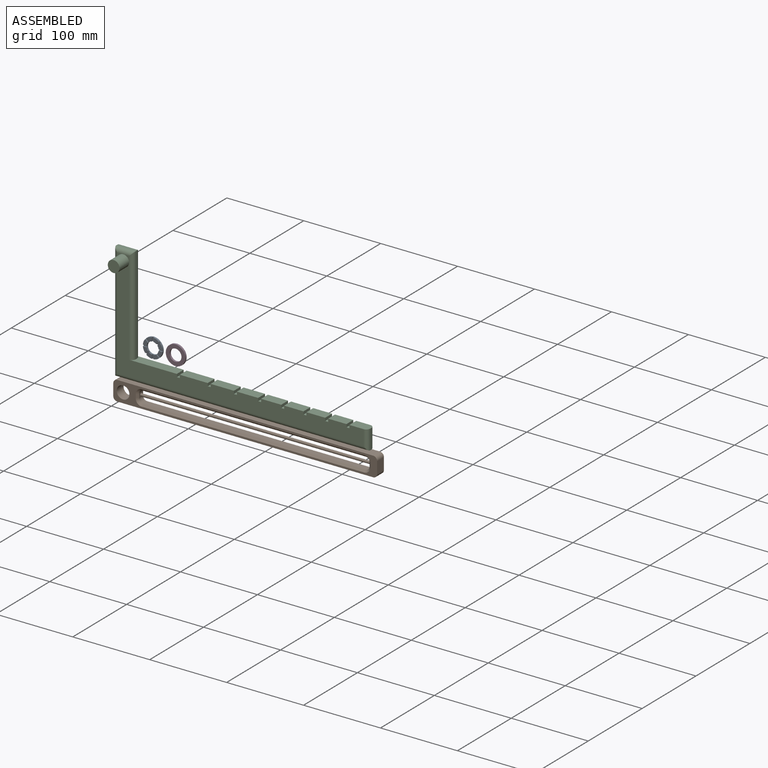
[diagram: assembled view]
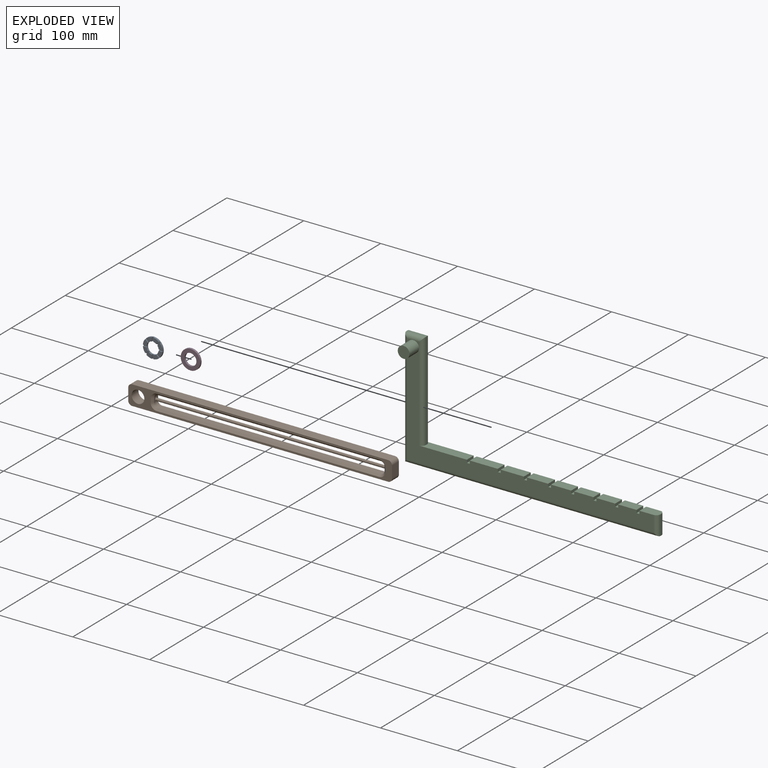
[diagram: exploded view]
GUIDED TOUR — MATED ASSEMBLY (Onshape document 7493769248287f27ccd3d8b9, AutoMate assembly 7493769248287f27ccd3d8b9_c37db1ddf2197a975d140b78_0ff339bc38e24517cc8eb02d_default)

This assembly has 4 components, labeled P0..P3 below (a component is one placed occurrence of a part; the same part can appear more than once), held together by 0 mates. A mate is a constraint between two components; its type names the relative motion it leaves free:
Axis/direction vectors are unit vectors and 'through' points are millimeter coordinates, both in the assembly's world frame.

MATES

ASSEMBLY ORDER
  1. P2 — the base component [order verified]
  2. P0 [order verified]
  3. P3 [order verified]
  4. P1 [order verified]
Order-tag legend:
  [order verified] — this step's position reverses a verified removal order: the component was checked to insert without passing through the ones already placed.

Of the 4 components, 3 carry the full construction recipe — the FeatureScript program that regenerates the part's solid from scratch; the rest are supplied as boundary geometry only.
Each toured component is shown spotlighted twice — in the assembled view, then in the exploded view, where a leader line traces a displaced component back to its assembled socket (saturated green if recipe-attached, orange if geometry-only; every other component desaturated gray) — followed by its recipe or geometry summary and the mates that hold it.
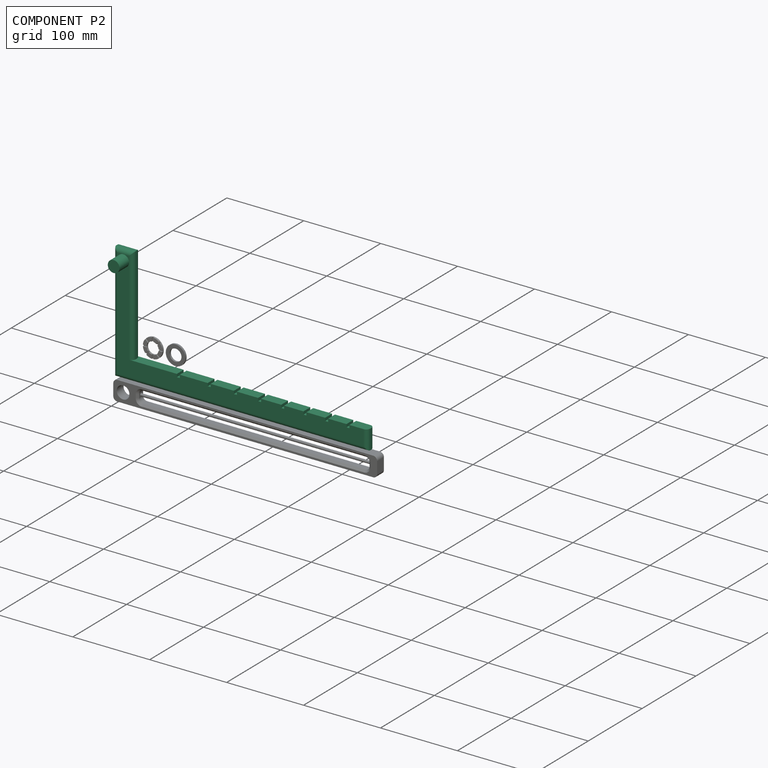
[diagram: component P2 — assembled]
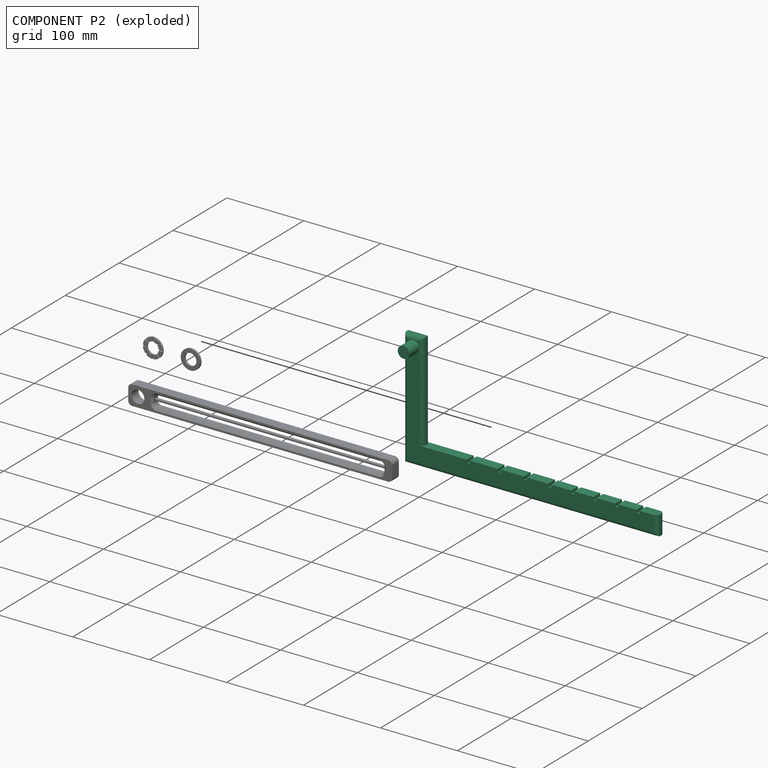
[diagram: component P2 — exploded]
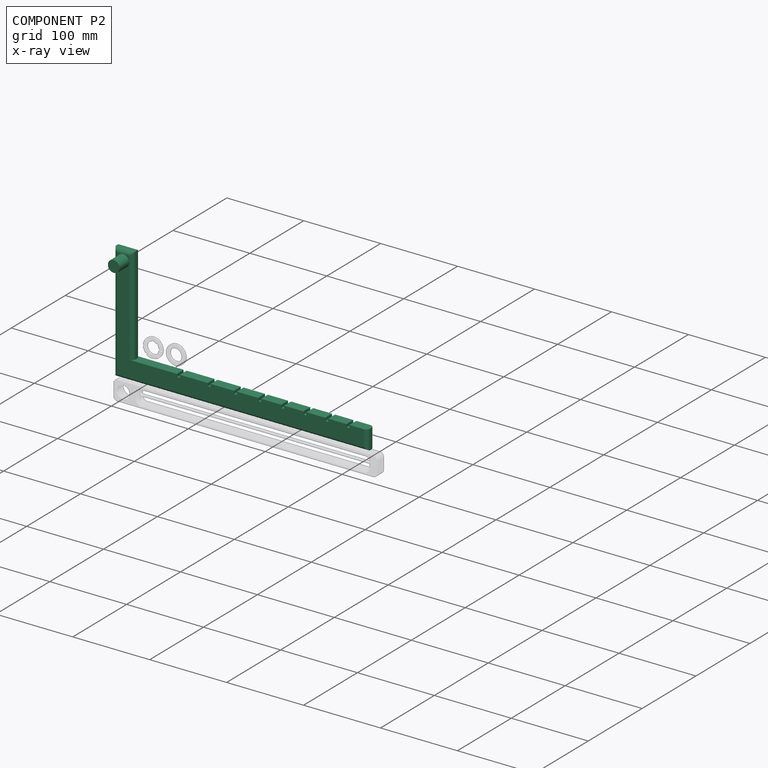
[diagram: component P2 — x-ray view]
COMPONENT P2 — recipe-attached (CADFS 00607360, mesh-verified: the recipe's output STEP matches this component's geometry to below the mesh-comparison resolution (tessellation chordal tolerance ~0.547 mm)).
Held by: no mates (free).
Construction recipe (FeatureScript — the CAD program that rebuilds this solid; sketch coordinates are in the units given by the * unit suffixes, e.g. mm):

FeatureScript 1511;
import(path : "onshape/std/geometry.fs", version : "1511.0");
import(path : "onshape/std/common.fs", version : "1511.0");
const mm = millimeter;
const VERTEX = EntityType.VERTEX;
const EDGE = EntityType.EDGE;
const FACE = EntityType.FACE;
const BODY = EntityType.BODY;
function v(x, y){return vector(x, y);}
function OD(order){return orderDisambiguation(order);}
function OSD(set){return originalSetDisambiguation(set);}
function TD(topology){return topologyDisambiguation(topology);}
function TDD(query){return trueDependencyDisambiguation(query);}
function sQuery(a, b, c) {return sketchEntityQuery(a, b, c);}

annotation { "Feature Type Name" : "Feature", "Feature Type Description" : "" }
export const myFeature = defineFeature(function(context is Context, id is Id, definition is map)
    precondition{}
    {
        {
            var Q0;
            Q0=qCreatedBy(makeId("Front.planeOp"),FACE);
            var sketch = newSketch(context, id + "F0", { "sketchPlane" : qUnion([Q0])});
            skLineSegment(sketch, "E0.bottom", {"start": v(0, 0) * mm, "end": v(330.2, 0) * mm});
            skLineSegment(sketch, "E0.top", {"start": v(0, -25.4) * mm, "end": v(330.2, -25.4) * mm});
            skLineSegment(sketch, "E0.left", {"start": v(0, 0) * mm, "end": v(0, -25.4) * mm});
            skLineSegment(sketch, "E0.right", {"start": v(330.2, 0) * mm, "end": v(330.2, -25.4) * mm});
            skLineSegment(sketch, "E1.bottom", {"start": v(0, 0) * mm, "end": v(25.4, 0) * mm});
            skLineSegment(sketch, "E1.top", {"start": v(0, 127) * mm, "end": v(25.4, 127) * mm});
            skLineSegment(sketch, "E1.left", {"start": v(0, 0) * mm, "end": v(0, 127) * mm});
            skLineSegment(sketch, "E1.right", {"start": v(25.4, 0) * mm, "end": v(25.4, 127) * mm});
            skSolve(sketch);
        }
        {
            var Q0;
            Q0 = qSketchRegion(id + "F0", true);
            extrude(context, id + "F1", {"entities" : qUnion([Q0]), "depth" : 12.7 * mm, "offsetDistance" : 25.4 * mm});
        }
        {
            var Q0;
            Q0=makeQuery(id+"F1.opExtrude","CAP_FACE",FACE,{"disambiguationData":[OSD([sQuery(id+"F0.wireOp",EDGE,"E0.bottom"),sQuery(id+"F0.wireOp",EDGE,"E0.top"),sQuery(id+"F0.wireOp",EDGE,"E0.left"),sQuery(id+"F0.wireOp",EDGE,"E0.right"),sQuery(id+"F0.wireOp",EDGE,"E1.top"),sQuery(id+"F0.wireOp",EDGE,"E1.left"),sQuery(id+"F0.wireOp",EDGE,"E1.right")])],"isStart":false});
            var sketch = newSketch(context, id + "F2", { "sketchPlane" : qUnion([Q0])});
            skPoint(sketch, "E2", {"position": v(12.7, 127) * mm});
            skLineSegment(sketch, "E3", {"start": v(12.7, 127) * mm, "end": v(12.7, 114.3) * mm});
            skCircle(sketch, "E4", {"center": v(12.7, 114.3) * mm, "radius": 7.62 * mm});
            skSolve(sketch);
        }
        {
            var Q0;
            Q0 = qSketchRegion(id + "F2", true);
            extrude(context, id + "F3", {"entities" : qUnion([Q0]), "operationType" : NewBodyOperationType.ADD, "depth" : 17.78 * mm, "offsetDistance" : 25.4 * mm});
        }
        {
            var Q0;
            Q0=makeQuery(id+"F1.opExtrude","CAP_FACE",FACE,{"disambiguationData":[OSD([sQuery(id+"F0.wireOp",EDGE,"E0.bottom"),sQuery(id+"F0.wireOp",EDGE,"E0.top"),sQuery(id+"F0.wireOp",EDGE,"E0.left"),sQuery(id+"F0.wireOp",EDGE,"E0.right"),sQuery(id+"F0.wireOp",EDGE,"E1.top"),sQuery(id+"F0.wireOp",EDGE,"E1.left"),sQuery(id+"F0.wireOp",EDGE,"E1.right")])],"isStart":false});
            var sketch = newSketch(context, id + "F4", { "sketchPlane" : qUnion([Q0])});
            skLineSegment(sketch, "E5", {"start": v(25.4, 0) * mm, "end": v(84.33, 0) * mm});
            skLineSegment(sketch, "E6", {"start": v(25.4, 0) * mm, "end": v(124.46, 0) * mm});
            skLineSegment(sketch, "E7", {"start": v(25.4, 0) * mm, "end": v(158.5, 0) * mm});
            skLineSegment(sketch, "E8", {"start": v(25.4, 0) * mm, "end": v(190, 0) * mm});
            skLineSegment(sketch, "E9", {"start": v(25.4, 0) * mm, "end": v(219.96, 0) * mm});
            skLineSegment(sketch, "E10", {"start": v(25.4, 0) * mm, "end": v(248.92, 0) * mm});
            skLineSegment(sketch, "E11", {"start": v(25.4, 0) * mm, "end": v(277.11, 0) * mm});
            skLineSegment(sketch, "E12", {"start": v(25.4, 0) * mm, "end": v(304.8, 0) * mm});
            skLineSegment(sketch, "E13.bottom", {"start": v(86.23, -3.8) * mm, "end": v(82.42, -3.8) * mm});
            skLineSegment(sketch, "E13.top", {"start": v(86.23, 3.81) * mm, "end": v(82.42, 3.81) * mm});
            skLineSegment(sketch, "E13.left", {"start": v(86.23, -3.8) * mm, "end": v(86.23, 3.81) * mm});
            skLineSegment(sketch, "E13.right", {"start": v(82.42, -3.8) * mm, "end": v(82.42, 3.81) * mm});
            skPoint(sketch, "E13.middle", {"position": v(84.33, 0) * mm});
            skLineSegment(sketch, "E14.bottom", {"start": v(126.37, -3.8) * mm, "end": v(122.56, -3.8) * mm});
            skLineSegment(sketch, "E14.top", {"start": v(126.37, 3.81) * mm, "end": v(122.56, 3.81) * mm});
            skLineSegment(sketch, "E14.left", {"start": v(126.37, -3.8) * mm, "end": v(126.37, 3.81) * mm});
            skLineSegment(sketch, "E14.right", {"start": v(122.56, -3.8) * mm, "end": v(122.56, 3.81) * mm});
            skPoint(sketch, "E14.middle", {"position": v(124.46, 0) * mm});
            skLineSegment(sketch, "E15.bottom", {"start": v(160.4, -3.8) * mm, "end": v(156.6, -3.8) * mm});
            skLineSegment(sketch, "E15.top", {"start": v(160.4, 3.81) * mm, "end": v(156.6, 3.81) * mm});
            skLineSegment(sketch, "E15.left", {"start": v(160.4, -3.8) * mm, "end": v(160.4, 3.81) * mm});
            skLineSegment(sketch, "E15.right", {"start": v(156.6, -3.8) * mm, "end": v(156.6, 3.81) * mm});
            skPoint(sketch, "E15.middle", {"position": v(158.5, 0) * mm});
            skLineSegment(sketch, "E16.bottom", {"start": v(191.9, -3.8) * mm, "end": v(188.09, -3.8) * mm});
            skLineSegment(sketch, "E16.top", {"start": v(191.9, 3.81) * mm, "end": v(188.09, 3.81) * mm});
            skLineSegment(sketch, "E16.left", {"start": v(191.9, -3.8) * mm, "end": v(191.9, 3.81) * mm});
            skLineSegment(sketch, "E16.right", {"start": v(188.09, -3.8) * mm, "end": v(188.09, 3.81) * mm});
            skPoint(sketch, "E16.middle", {"position": v(190, 0) * mm});
            skLineSegment(sketch, "E17.bottom", {"start": v(221.87, -3.8) * mm, "end": v(218.06, -3.8) * mm});
            skLineSegment(sketch, "E17.top", {"start": v(221.87, 3.81) * mm, "end": v(218.06, 3.81) * mm});
            skLineSegment(sketch, "E17.left", {"start": v(221.87, -3.8) * mm, "end": v(221.87, 3.81) * mm});
            skLineSegment(sketch, "E17.right", {"start": v(218.06, -3.8) * mm, "end": v(218.06, 3.81) * mm});
            skPoint(sketch, "E17.middle", {"position": v(219.96, 0) * mm});
            skLineSegment(sketch, "E18.bottom", {"start": v(250.83, -3.8) * mm, "end": v(247.02, -3.8) * mm});
            skLineSegment(sketch, "E18.top", {"start": v(250.83, 3.81) * mm, "end": v(247.02, 3.81) * mm});
            skLineSegment(sketch, "E18.left", {"start": v(250.83, -3.8) * mm, "end": v(250.83, 3.81) * mm});
            skLineSegment(sketch, "E18.right", {"start": v(247.02, -3.8) * mm, "end": v(247.02, 3.81) * mm});
            skPoint(sketch, "E18.middle", {"position": v(248.92, 0) * mm});
            skLineSegment(sketch, "E19.bottom", {"start": v(279.02, -3.8) * mm, "end": v(275.2, -3.8) * mm});
            skLineSegment(sketch, "E19.top", {"start": v(279.02, 3.81) * mm, "end": v(275.2, 3.81) * mm});
            skLineSegment(sketch, "E19.left", {"start": v(279.02, -3.8) * mm, "end": v(279.02, 3.81) * mm});
            skLineSegment(sketch, "E19.right", {"start": v(275.2, -3.8) * mm, "end": v(275.2, 3.81) * mm});
            skPoint(sketch, "E19.middle", {"position": v(277.11, 0) * mm});
            skLineSegment(sketch, "E20.bottom", {"start": v(306.7, -3.8) * mm, "end": v(302.9, -3.8) * mm});
            skLineSegment(sketch, "E20.top", {"start": v(306.7, 3.81) * mm, "end": v(302.9, 3.81) * mm});
            skLineSegment(sketch, "E20.left", {"start": v(306.7, -3.8) * mm, "end": v(306.7, 3.81) * mm});
            skLineSegment(sketch, "E20.right", {"start": v(302.9, -3.8) * mm, "end": v(302.9, 3.81) * mm});
            skPoint(sketch, "E20.middle", {"position": v(304.8, 0) * mm});
            skSolve(sketch);
        }
        {
            var Q0;
            Q0 = qSketchRegion(id + "F4", true);
            extrude(context, id + "F5", {"entities" : qUnion([Q0]), "operationType" : NewBodyOperationType.REMOVE, "oppositeDirection" : true, "depth" : 25.4 * mm, "offsetDistance" : 25.4 * mm});
        }
        {
            var Q0;
            Q0=makeQuery(id+"F1.opExtrude","CAP_EDGE",EDGE,{"disambiguationData":[OSD([sQuery(id+"F0.wireOp",EDGE,"E0.top")])],"isStart":false});
            var Q1;
            Q1=makeQuery(id+"F1.opExtrude","CAP_EDGE",EDGE,{"disambiguationData":[OSD([sQuery(id+"F0.wireOp",EDGE,"E0.top")])],"isStart":true});
            var Q2;
            Q2=makeQuery(id+"F1.opExtrude","CAP_EDGE",EDGE,{"disambiguationData":[OSD([sQuery(id+"F0.wireOp",EDGE,"E0.left"),sQuery(id+"F0.wireOp",EDGE,"E1.left")])],"isStart":true});
            var Q3;
            Q3=makeQuery(id+"F1.opExtrude","CAP_EDGE",EDGE,{"disambiguationData":[OSD([sQuery(id+"F0.wireOp",EDGE,"E0.left"),sQuery(id+"F0.wireOp",EDGE,"E1.left")])],"isStart":false});
            var Q4;
            Q4=makeQuery(id+"F1.opExtrude","CAP_EDGE",EDGE,{"disambiguationData":[OSD([sQuery(id+"F0.wireOp",EDGE,"E1.top")])],"isStart":true});
            var Q5;
            Q5=makeQuery(id+"F1.opExtrude","CAP_EDGE",EDGE,{"disambiguationData":[OSD([sQuery(id+"F0.wireOp",EDGE,"E1.top")])],"isStart":false});
            var Q6;
            Q6=makeQuery(id+"F1.opExtrude","CAP_EDGE",EDGE,{"disambiguationData":[OSD([sQuery(id+"F0.wireOp",EDGE,"E1.right")])],"isStart":true});
            var Q7;
            Q7=makeQuery(id+"F1.opExtrude","CAP_EDGE",EDGE,{"disambiguationData":[OSD([sQuery(id+"F0.wireOp",EDGE,"E1.right")])],"isStart":false});
            var Q8;
            Q8=makeQuery(id+"F1.opExtrude","CAP_EDGE",EDGE,{"disambiguationData":[OSD([sQuery(id+"F0.wireOp",EDGE,"E0.right")])],"isStart":true});
            var Q9;
            Q9=makeQuery(id+"F1.opExtrude","CAP_EDGE",EDGE,{"disambiguationData":[OSD([sQuery(id+"F0.wireOp",EDGE,"E0.right")])],"isStart":false});
            fillet(context, id + "F6", {"entities" : qUnion([Q0, Q1, Q2, Q3, Q4, Q5, Q6, Q7, Q8, Q9]), "radius" : 5.08 * mm, "tangentPropagation" : true, "allowEdgeOverflow" : false});
        }
    });
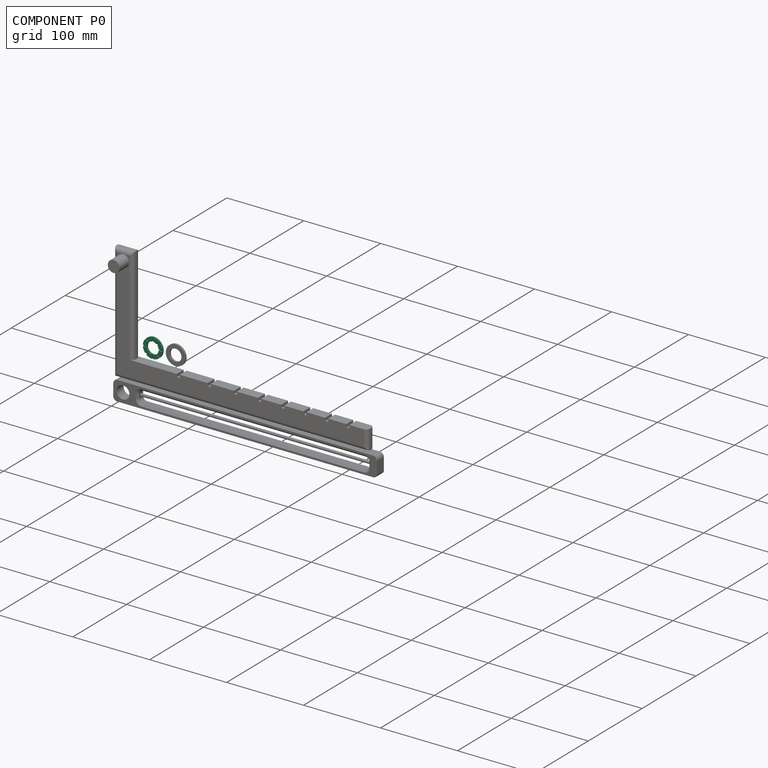
[diagram: component P0 — assembled]
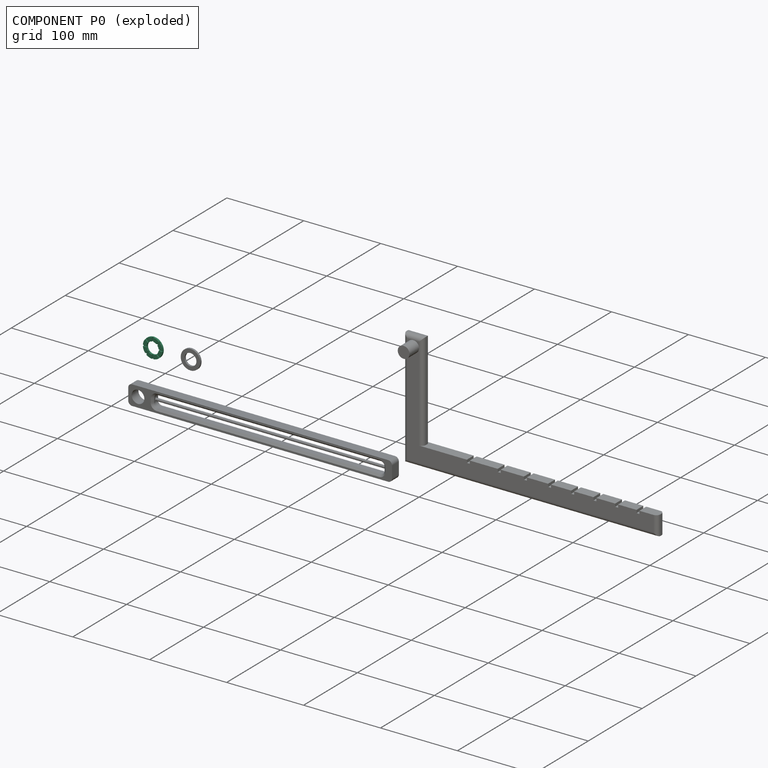
[diagram: component P0 — exploded]
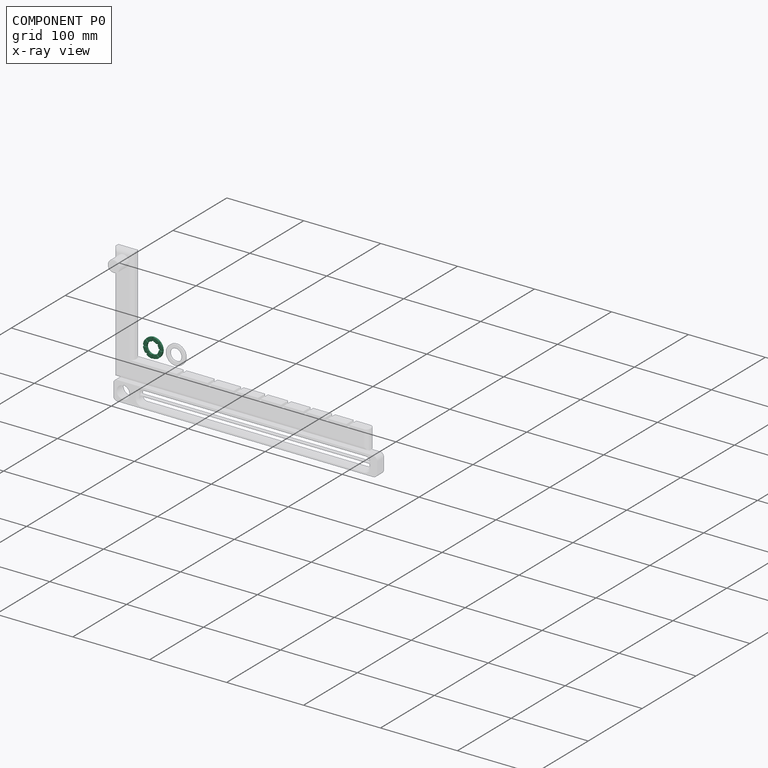
[diagram: component P0 — x-ray view]
COMPONENT P0 — recipe-attached (CADFS 00607361, mesh-verified: the recipe's output STEP matches this component's geometry to below the mesh-comparison resolution (tessellation chordal tolerance ~0.054 mm)).
Held by: no mates (free).
Construction recipe (FeatureScript — the CAD program that rebuilds this solid; sketch coordinates are in the units given by the * unit suffixes, e.g. mm):

FeatureScript 1511;
import(path : "onshape/std/geometry.fs", version : "1511.0");
import(path : "onshape/std/common.fs", version : "1511.0");
const mm = millimeter;
const VERTEX = EntityType.VERTEX;
const EDGE = EntityType.EDGE;
const FACE = EntityType.FACE;
const BODY = EntityType.BODY;
function v(x, y){return vector(x, y);}
function OD(order){return orderDisambiguation(order);}
function OSD(set){return originalSetDisambiguation(set);}
function TD(topology){return topologyDisambiguation(topology);}
function TDD(query){return trueDependencyDisambiguation(query);}
function sQuery(a, b, c) {return sketchEntityQuery(a, b, c);}

annotation { "Feature Type Name" : "Feature", "Feature Type Description" : "" }
export const myFeature = defineFeature(function(context is Context, id is Id, definition is map)
    precondition{}
    {
        {
            var Q0;
            Q0=qCreatedBy(makeId("Top.planeOp"),FACE);
            var sketch = newSketch(context, id + "F0", { "sketchPlane" : qUnion([Q0])});
            skCircle(sketch, "E0", {"center": v(0, 0) * mm, "radius": 7.75 * mm});
            skCircle(sketch, "E1", {"center": v(0, 0) * mm, "radius": 12.7 * mm});
            skSolve(sketch);
        }
        {
            var Q0;
            Q0=makeQuery(id+"F0.imprint","IMPRINT",FACE,{"disambiguationData":[TD([[makeQuery(id+"F0.imprint","IMPRINT",EDGE,{"derivedFrom":sQuery(id+"F0.wireOp",EDGE,"E0")}),-1.0]])]});
            extrude(context, id + "F1", {"entities" : qUnion([Q0]), "depth" : 2.54 * mm, "offsetDistance" : 25.4 * mm});
        }
        {
            var Q0;
            Q0=makeQuery(id+"F1.opExtrude","CAP_FACE",FACE,{"disambiguationData":[OSD([sQuery(id+"F0.wireOp",EDGE,"E0"),sQuery(id+"F0.wireOp",EDGE,"E1")])],"isStart":false});
            var sketch = newSketch(context, id + "F2", { "sketchPlane" : qUnion([Q0])});
            skPoint(sketch, "E2", {"position": v(0, 0) * mm});
            skLineSegment(sketch, "E3", {"start": v(0, 0) * mm, "end": v(6.35, 6.35) * mm});
            skLineSegment(sketch, "E4", {"start": v(0, 0) * mm, "end": v(-6.35, 6.35) * mm});
            skLineSegment(sketch, "E5", {"start": v(0, 0) * mm, "end": v(6.35, -6.35) * mm});
            skLineSegment(sketch, "E6", {"start": v(0, 0) * mm, "end": v(-6.35, -6.35) * mm});
            skLineSegment(sketch, "E7", {"start": v(0, 0) * mm, "end": v(-9.7, -9.7) * mm});
            skLineSegment(sketch, "E8", {"start": v(0, 0) * mm, "end": v(9.7, -9.7) * mm});
            skLineSegment(sketch, "E9", {"start": v(0, 0) * mm, "end": v(-9.7, 9.7) * mm});
            skLineSegment(sketch, "E10", {"start": v(0, 0) * mm, "end": v(9.7, 9.7) * mm});
            skLineSegment(sketch, "E11", {"start": v(0, 0) * mm, "end": v(1.27, 0) * mm});
            skLineSegment(sketch, "E12", {"start": v(0, 0) * mm, "end": v(0, 1.27) * mm});
            skLineSegment(sketch, "E13", {"start": v(9.7, 9.7) * mm, "end": v(9.7, 8.43) * mm});
            skLineSegment(sketch, "E14", {"start": v(9.7, 9.7) * mm, "end": v(8.43, 9.7) * mm});
            skLineSegment(sketch, "E15", {"start": v(0, 1.27) * mm, "end": v(8.43, 9.7) * mm});
            skLineSegment(sketch, "E16", {"start": v(1.27, 0) * mm, "end": v(9.7, 8.43) * mm});
            skLineSegment(sketch, "E17", {"start": v(0, 0) * mm, "end": v(0, -1.27) * mm});
            skLineSegment(sketch, "E18", {"start": v(9.7, -9.7) * mm, "end": v(9.7, -8.43) * mm});
            skLineSegment(sketch, "E19", {"start": v(9.7, -9.7) * mm, "end": v(8.43, -9.7) * mm});
            skLineSegment(sketch, "E20", {"start": v(1.27, 0) * mm, "end": v(9.7, -8.43) * mm});
            skLineSegment(sketch, "E21", {"start": v(0, -1.27) * mm, "end": v(8.43, -9.7) * mm});
            skLineSegment(sketch, "E22", {"start": v(0, 0) * mm, "end": v(-1.27, 0) * mm});
            skLineSegment(sketch, "E23", {"start": v(-9.7, -9.7) * mm, "end": v(-8.43, -9.7) * mm});
            skLineSegment(sketch, "E24", {"start": v(-9.7, -9.7) * mm, "end": v(-9.7, -8.43) * mm});
            skLineSegment(sketch, "E25", {"start": v(-8.43, -9.7) * mm, "end": v(0, -1.27) * mm});
            skLineSegment(sketch, "E26", {"start": v(-9.7, -8.43) * mm, "end": v(-1.27, 0) * mm});
            skLineSegment(sketch, "E27", {"start": v(-9.7, 9.7) * mm, "end": v(-9.7, 8.43) * mm});
            skLineSegment(sketch, "E28", {"start": v(-9.7, 9.7) * mm, "end": v(-8.43, 9.7) * mm});
            skLineSegment(sketch, "E29", {"start": v(-8.43, 9.7) * mm, "end": v(0, 1.27) * mm});
            skLineSegment(sketch, "E30", {"start": v(-1.27, 0) * mm, "end": v(-9.7, 8.43) * mm});
            skSolve(sketch);
        }
        {
            var Q0;
            Q0 = qSketchRegion(id + "F2", true);
            extrude(context, id + "F3", {"entities" : qUnion([Q0]), "operationType" : NewBodyOperationType.REMOVE, "oppositeDirection" : true, "depth" : 1.27 * mm, "offsetDistance" : 25.4 * mm});
        }
        {
            var Q0;
            {var subQ0=sQuery(id+"F0.wireOp",EDGE,"E0");var subQ1=sQuery(id+"F0.wireOp",EDGE,"E1");Q0=makeQuery(id+"F3.boolean.opBoolean","SPLIT",FACE,{"disambiguationData":[TD([makeQuery(id+"F3.opExtrude","SWEPT_FACE",FACE,{"disambiguationData":[OSD([sQuery(id+"F2.wireOp",EDGE,"E15")])]})])],"derivedFrom":makeQuery(id+"F1.opExtrude","CAP_FACE",FACE,{"disambiguationData":[OSD([subQ0,subQ1])],"isStart":false})});}
            var sketch = newSketch(context, id + "F4", { "sketchPlane" : qUnion([Q0])});
            skLineSegment(sketch, "E31.bottom", {"start": v(0.95, -12.7) * mm, "end": v(-0.95, -12.7) * mm});
            skLineSegment(sketch, "E31.top", {"start": v(0.95, 12.7) * mm, "end": v(-0.95, 12.7) * mm});
            skLineSegment(sketch, "E31.left", {"start": v(0.95, -12.7) * mm, "end": v(0.95, 12.7) * mm});
            skLineSegment(sketch, "E31.right", {"start": v(-0.95, -12.7) * mm, "end": v(-0.95, 12.7) * mm});
            skPoint(sketch, "E31.middle", {"position": v(0, 0) * mm});
            skLineSegment(sketch, "E32.bottom", {"start": v(12.7, -0.95) * mm, "end": v(-12.7, -0.95) * mm});
            skLineSegment(sketch, "E32.top", {"start": v(12.7, 0.95) * mm, "end": v(-12.7, 0.95) * mm});
            skLineSegment(sketch, "E32.left", {"start": v(12.7, -0.95) * mm, "end": v(12.7, 0.95) * mm});
            skLineSegment(sketch, "E32.right", {"start": v(-12.7, -0.95) * mm, "end": v(-12.7, 0.95) * mm});
            skSolve(sketch);
        }
        {
            var Q0;
            Q0 = qSketchRegion(id + "F4", true);
            extrude(context, id + "F5", {"entities" : qUnion([Q0]), "operationType" : NewBodyOperationType.REMOVE, "oppositeDirection" : true, "depth" : 1.27 * mm, "offsetDistance" : 25.4 * mm});
        }
    });
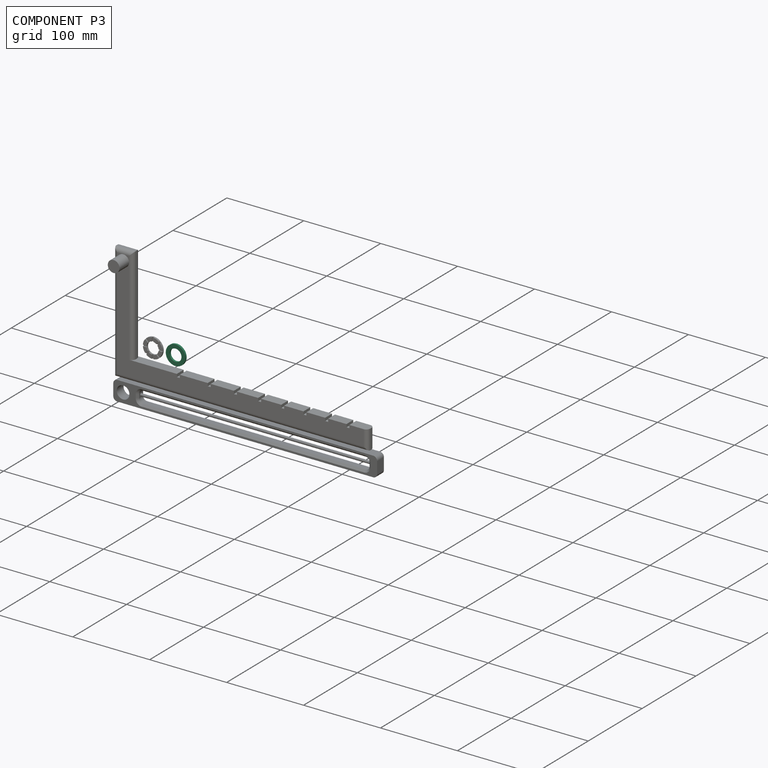
[diagram: component P3 — assembled]
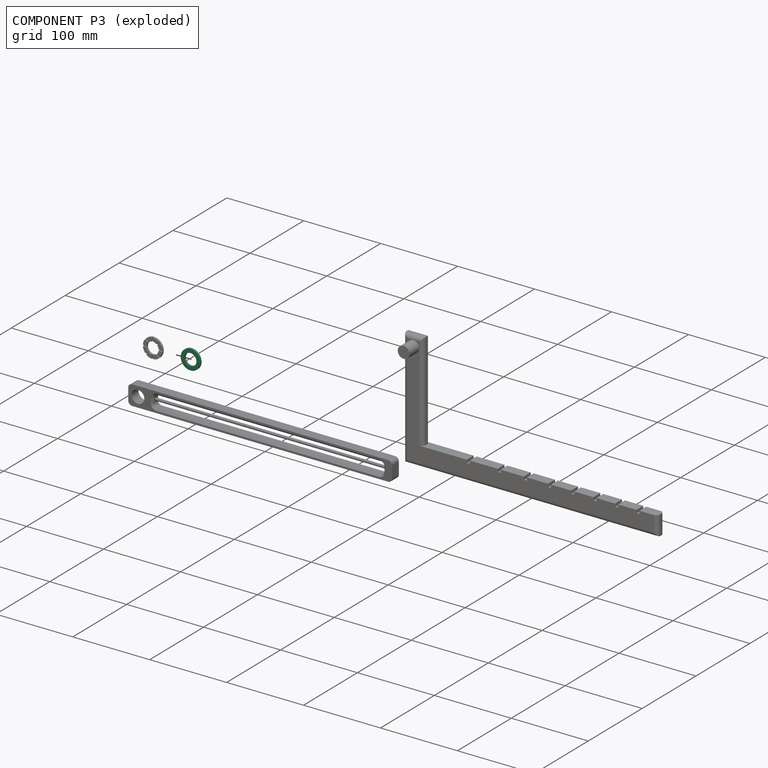
[diagram: component P3 — exploded]
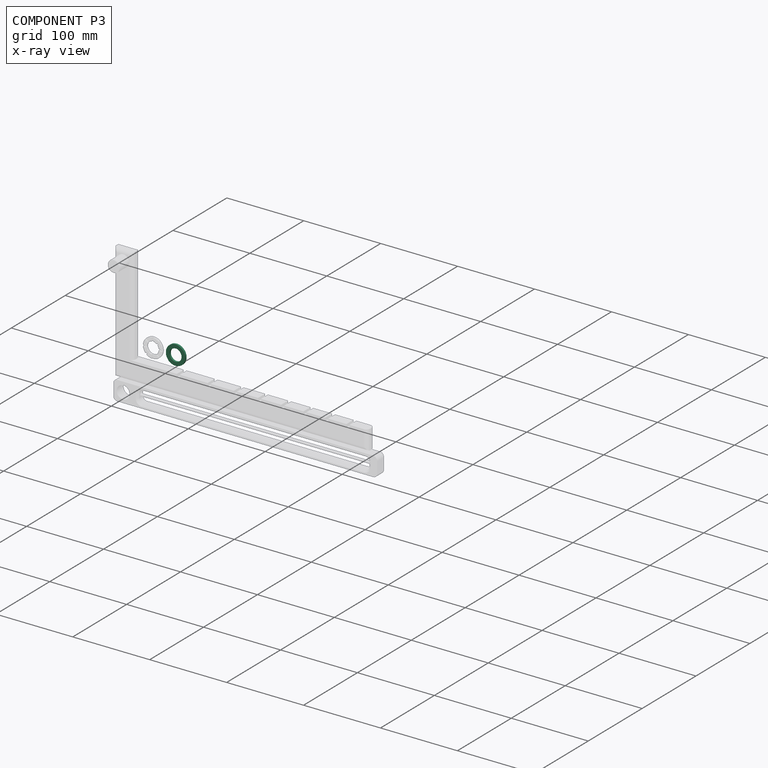
[diagram: component P3 — x-ray view]
COMPONENT P3 — recipe-attached (CADFS 00607362, mesh-verified: the recipe's output STEP matches this component's geometry to below the mesh-comparison resolution (tessellation chordal tolerance ~0.054 mm)).
Held by: no mates (free).
Construction recipe (FeatureScript — the CAD program that rebuilds this solid; sketch coordinates are in the units given by the * unit suffixes, e.g. mm):

FeatureScript 1511;
import(path : "onshape/std/geometry.fs", version : "1511.0");
import(path : "onshape/std/common.fs", version : "1511.0");
const mm = millimeter;
const VERTEX = EntityType.VERTEX;
const EDGE = EntityType.EDGE;
const FACE = EntityType.FACE;
const BODY = EntityType.BODY;
function v(x, y){return vector(x, y);}
function OD(order){return orderDisambiguation(order);}
function OSD(set){return originalSetDisambiguation(set);}
function TD(topology){return topologyDisambiguation(topology);}
function TDD(query){return trueDependencyDisambiguation(query);}
function sQuery(a, b, c) {return sketchEntityQuery(a, b, c);}

annotation { "Feature Type Name" : "Feature", "Feature Type Description" : "" }
export const myFeature = defineFeature(function(context is Context, id is Id, definition is map)
    precondition{}
    {
        {
            var Q0;
            Q0=qCreatedBy(makeId("Top.planeOp"),FACE);
            var sketch = newSketch(context, id + "F0", { "sketchPlane" : qUnion([Q0])});
            skCircle(sketch, "E0", {"center": v(0, 0) * mm, "radius": 7.75 * mm});
            skCircle(sketch, "E1", {"center": v(0, 0) * mm, "radius": 12.7 * mm});
            skSolve(sketch);
        }
        {
            var Q0;
            Q0=makeQuery(id+"F0.imprint","IMPRINT",FACE,{"disambiguationData":[TD([[makeQuery(id+"F0.imprint","IMPRINT",EDGE,{"derivedFrom":sQuery(id+"F0.wireOp",EDGE,"E0")}),-1.0]])]});
            extrude(context, id + "F1", {"entities" : qUnion([Q0]), "depth" : 2.54 * mm, "offsetDistance" : 25.4 * mm});
        }
    });
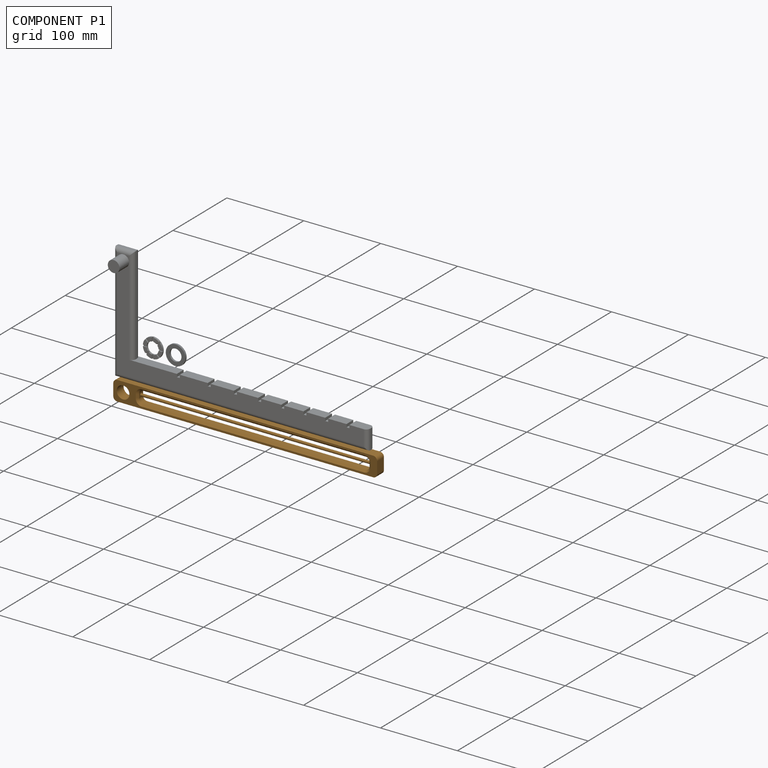
[diagram: component P1 — assembled]
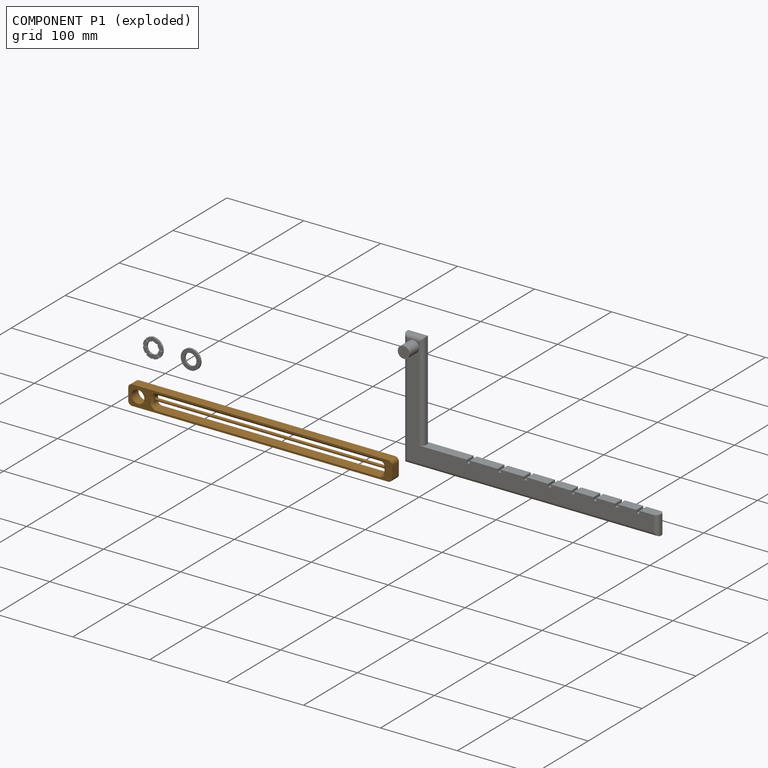
[diagram: component P1 — exploded]
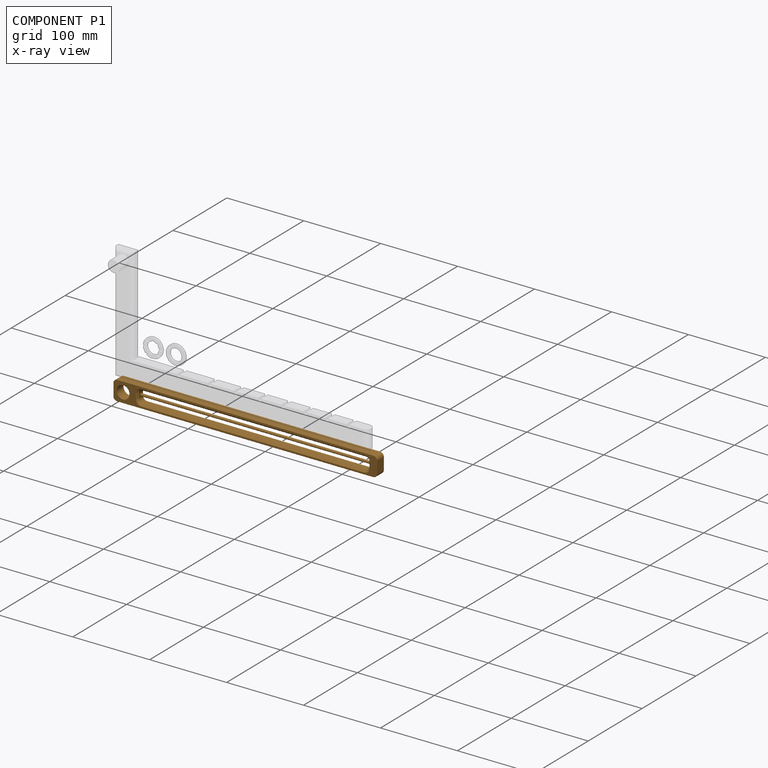
[diagram: component P1 — x-ray view]
COMPONENT P1 — geometry summary (no construction recipe available for this part):
  bounding box: 342.9 x 25.4 x 12.7 mm
  B-rep topology: 1 solid, 36 faces, 174 edges
  volume: 48818 mm^3 (44% of its bounding box)
  symmetry: 2-fold rotationally symmetric about the x axis; mirror-symmetric across its y mid-plane, z mid-plane
Held by: no mates (free).
PROVENANCE & LICENSES
Assembly (occurrences, transforms, mates, per-part STEP geometry): AutoMate dataset, Zenodo record 7776208, CC0.
Construction recipes: CADFS (HuggingFace VladPyatov/CADFS, CC-BY-4.0, layered over the ABC dataset), FeatureScript reconstruction programs keyed by ABC model id.
Join: ABC meta listings map ABC model id -> Onshape documentId; within a shared document, parts are matched by geometric signature (bounding-box dims + volume at 0.1% relative tolerance, exact B-rep face/solid counts).
Verification: 3 of this assembly's 4 components carry a recipe attachment, and every attachment is mesh-verified: the CADFS STEP and the AutoMate member STEP were compared as meshes in their shared local frame (symmetric sampled-point-to-mesh distance); worst across the 3 attachments: below the mesh-comparison resolution (tessellation chordal tolerance ~0.547 mm) on a 365 mm part.
Renders: orthographic iso camera (az 35 / el 25); the floor grid conveys scale (grid pitch printed in each image; no ruler). In the exploded view each component is displaced by its stored offset vector: the offsets alone carry the explosion direction (mate normal/axis signs are not orientation cues and do not encode it), and separation distances are assigned per mate-chain, not proportionally to assembly-order depth.
